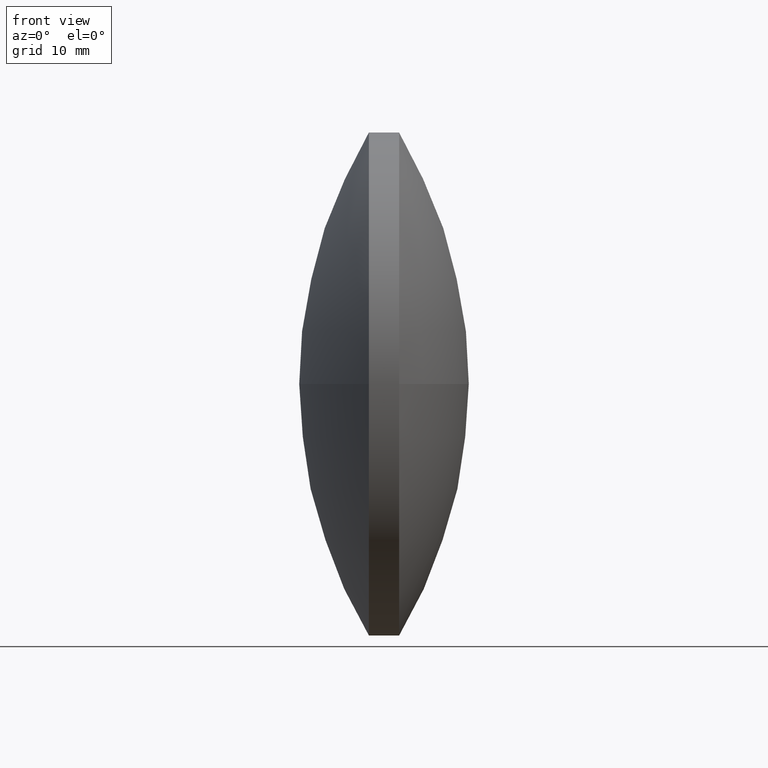
[diagram: clean part render]
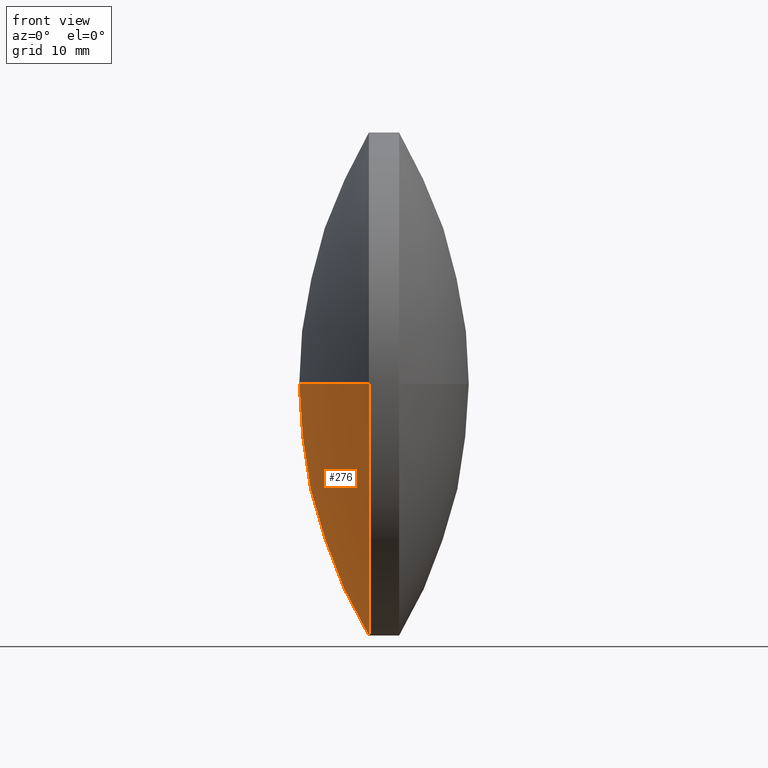
[diagram: same view with one face highlighted and labeled with its STEP entity id]
A machine part, front view. The second image highlights one B-rep face of the part: STEP entity #276.
In plain terms, the highlighted spherical surface has radius 48.5889 mm.
Its self-contained STEP definition (entity closure, byte-faithful):
#7 = DIRECTION ( 'NONE',  ( 0.0000000000000000000, 1.000000000000000000, 1.224646799147353500E-016 ) ) ;
#9 = CARTESIAN_POINT ( 'NONE',  ( 210.3571486226290100, 95.70100988816005800, 0.0000000000000000000 ) ) ;
#17 = CIRCLE ( 'NONE', #220, 25.00000000000025900 ) ;
#21 = ORIENTED_EDGE ( 'NONE', *, *, #247, .T. ) ;
#26 = AXIS2_PLACEMENT_3D ( 'NONE', #302, #273, #7 ) ;
#32 = AXIS2_PLACEMENT_3D ( 'NONE', #119, #60, #303 ) ;
#33 = DIRECTION ( 'NONE',  ( -1.000000000000000000, -0.0000000000000000000, -0.0000000000000000000 ) ) ;
#38 = ORIENTED_EDGE ( 'NONE', *, *, #304, .T. ) ;
#59 = DIRECTION ( 'NONE',  ( -1.000000000000000000, -0.0000000000000000000, -0.0000000000000000000 ) ) ;
#60 = DIRECTION ( 'NONE',  ( -0.0000000000000000000, 0.0000000000000000000, -1.000000000000000000 ) ) ;
#62 = DIRECTION ( 'NONE',  ( 0.0000000000000000000, 0.0000000000000000000, 1.000000000000000000 ) ) ;
#63 = CIRCLE ( 'NONE', #223, 48.58885379061430900 ) ;
#64 = DIRECTION ( 'NONE',  ( -0.0000000000000000000, 0.0000000000000000000, 1.000000000000000000 ) ) ;
#83 = CARTESIAN_POINT ( 'NONE',  ( 161.7682948320146700, 95.70100988816005800, 0.0000000000000000000 ) ) ;
#89 = CIRCLE ( 'NONE', #294, 25.00000000000025900 ) ;
#92 = CARTESIAN_POINT ( 'NONE',  ( 168.6932948320147400, 95.70100988816007300, -25.00000000000025900 ) ) ;
#109 = VERTEX_POINT ( 'NONE', #83 ) ;
#113 = EDGE_LOOP ( 'NONE', ( #336, #21, #38, #249 ) ) ;
#116 = DIRECTION ( 'NONE',  ( 0.0000000000000000000, 0.0000000000000000000, 1.000000000000000000 ) ) ;
#119 = CARTESIAN_POINT ( 'NONE',  ( 210.3571486226290100, 95.70100988816005800, 0.0000000000000000000 ) ) ;
#120 = CARTESIAN_POINT ( 'NONE',  ( 168.6932948320147400, 95.70100988816007300, 0.0000000000000000000 ) ) ;
#127 = CIRCLE ( 'NONE', #26, 48.58885379061432300 ) ;
#194 = VERTEX_POINT ( 'NONE', #323 ) ;
#202 = CARTESIAN_POINT ( 'NONE',  ( 168.6932948320147400, 95.70100988816007300, 0.0000000000000000000 ) ) ;
#209 = VERTEX_POINT ( 'NONE', #218 ) ;
#218 = CARTESIAN_POINT ( 'NONE',  ( 168.6932948320147400, 120.7010098881603300, 0.0000000000000000000 ) ) ;
#220 = AXIS2_PLACEMENT_3D ( 'NONE', #120, #59, #116 ) ;
#223 = AXIS2_PLACEMENT_3D ( 'NONE', #9, #64, #272 ) ;
#237 = EDGE_CURVE ( 'NONE', #209, #246, #89, .T. ) ;
#246 = VERTEX_POINT ( 'NONE', #92 ) ;
#247 = EDGE_CURVE ( 'NONE', #246, #194, #17, .T. ) ;
#249 = ORIENTED_EDGE ( 'NONE', *, *, #320, .F. ) ;
#272 = DIRECTION ( 'NONE',  ( 1.000000000000000000, 0.0000000000000000000, 0.0000000000000000000 ) ) ;
#273 = DIRECTION ( 'NONE',  ( 0.0000000000000000000, 1.224646799147353200E-016, -1.000000000000000000 ) ) ;
#276 = ADVANCED_FACE ( 'NONE', ( #284 ), #306, .T. ) ;
#284 = FACE_OUTER_BOUND ( 'NONE', #113, .T. ) ;
#294 = AXIS2_PLACEMENT_3D ( 'NONE', #202, #33, #62 ) ;
#302 = CARTESIAN_POINT ( 'NONE',  ( 210.3571486226290100, 95.70100988816005800, 0.0000000000000000000 ) ) ;
#303 = DIRECTION ( 'NONE',  ( 0.0000000000000000000, 1.000000000000000000, 0.0000000000000000000 ) ) ;
#304 = EDGE_CURVE ( 'NONE', #194, #109, #127, .T. ) ;
#306 = SPHERICAL_SURFACE ( 'NONE', #32, 48.58885379061433000 ) ;
#320 = EDGE_CURVE ( 'NONE', #209, #109, #63, .T. ) ;
#323 = CARTESIAN_POINT ( 'NONE',  ( 168.6932948320147400, 70.70100988815980300, -3.061616997868414600E-015 ) ) ;
#336 = ORIENTED_EDGE ( 'NONE', *, *, #237, .T. ) ;